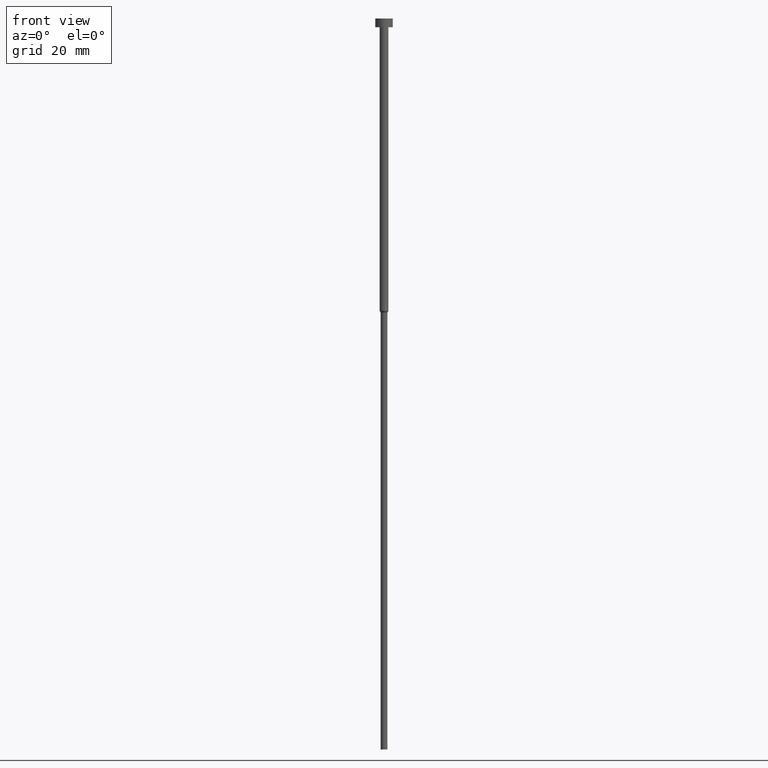
[diagram: clean part render]
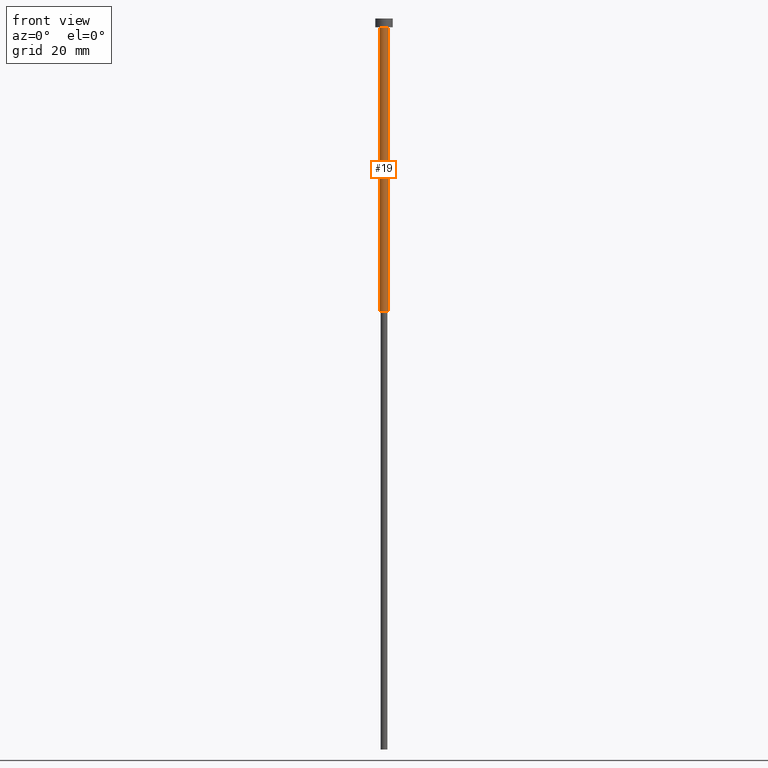
[diagram: same view with one face highlighted and labeled with its STEP entity id]
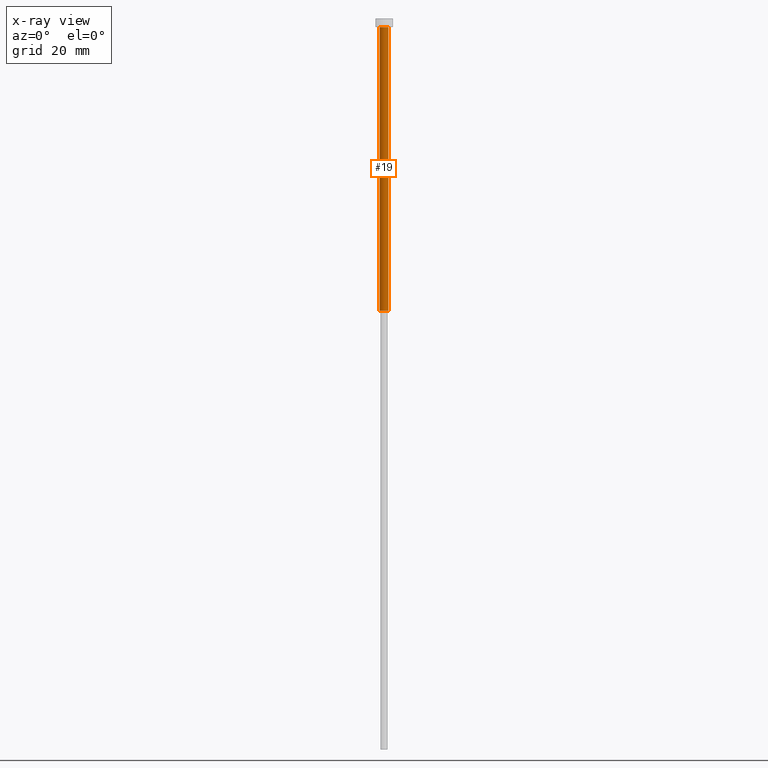
[diagram: x-ray of the same camera — body ghosted, the highlighted face saturated]
A machine part, front view. The second image highlights one B-rep face of the part: STEP entity #19.
The next image is the same camera in x-ray: the body ghosted, the highlighted face saturated — about 0% of this face is hidden behind the body in this view.
In plain terms, the highlighted cylindrical surface (edge-blend (fillet) strip) has radius 1.5 mm, axis along (-0, -0, 1).
Its self-contained STEP definition (entity closure, byte-faithful):
#1 = CARTESIAN_POINT ( 'NONE',  ( 0.000000000000000000, 0.000000000000000000, -3.000000000000000888 ) ) ;
#2 = LINE ( 'NONE', #136, #347 ) ;
#19 = ADVANCED_FACE ( 'NONE', ( #150 ), #182, .T. ) ;
#20 = EDGE_LOOP ( 'NONE', ( #265, #214, #69, #149 ) ) ;
#34 = EDGE_CURVE ( 'NONE', #46, #335, #2, .T. ) ;
#44 = VERTEX_POINT ( 'NONE', #351 ) ;
#46 = VERTEX_POINT ( 'NONE', #246 ) ;
#48 = CARTESIAN_POINT ( 'NONE',  ( 0.000000000000000000, 0.000000000000000000, 0.000000000000000000 ) ) ;
#50 = DIRECTION ( 'NONE',  ( 1.000000000000000000, 0.000000000000000000, 0.000000000000000000 ) ) ;
#65 = EDGE_CURVE ( 'NONE', #102, #335, #189, .T. ) ;
#69 = ORIENTED_EDGE ( 'NONE', *, *, #34, .T. ) ;
#102 = VERTEX_POINT ( 'NONE', #157 ) ;
#118 = AXIS2_PLACEMENT_3D ( 'NONE', #48, #137, #50 ) ;
#120 = CARTESIAN_POINT ( 'NONE',  ( 1.500000000000000000, 0.000000000000000000, -3.000000000000000888 ) ) ;
#136 = CARTESIAN_POINT ( 'NONE',  ( 1.500000000000000000, 0.000000000000000000, 0.000000000000000000 ) ) ;
#137 = DIRECTION ( 'NONE',  ( -0.000000000000000000, -0.000000000000000000, 1.000000000000000000 ) ) ;
#138 = CIRCLE ( 'NONE', #191, 1.500000000000000000 ) ;
#141 = DIRECTION ( 'NONE',  ( -0.000000000000000000, -0.000000000000000000, 1.000000000000000000 ) ) ;
#149 = ORIENTED_EDGE ( 'NONE', *, *, #65, .F. ) ;
#150 = FACE_OUTER_BOUND ( 'NONE', #20, .T. ) ;
#157 = CARTESIAN_POINT ( 'NONE',  ( -1.500000000000000000, 1.836970198721029934E-16, -3.000000000000000888 ) ) ;
#158 = DIRECTION ( 'NONE',  ( 1.000000000000000000, 0.000000000000000000, 0.000000000000000000 ) ) ;
#182 = CYLINDRICAL_SURFACE ( 'NONE', #118, 1.500000000000000000 ) ;
#184 = VECTOR ( 'NONE', #228, 1000.000000000000000 ) ;
#189 = CIRCLE ( 'NONE', #326, 1.500000000000000000 ) ;
#191 = AXIS2_PLACEMENT_3D ( 'NONE', #342, #141, #200 ) ;
#200 = DIRECTION ( 'NONE',  ( 1.000000000000000000, 0.000000000000000000, 0.000000000000000000 ) ) ;
#214 = ORIENTED_EDGE ( 'NONE', *, *, #272, .T. ) ;
#220 = DIRECTION ( 'NONE',  ( -0.000000000000000000, -0.000000000000000000, 1.000000000000000000 ) ) ;
#225 = LINE ( 'NONE', #231, #184 ) ;
#228 = DIRECTION ( 'NONE',  ( -0.000000000000000000, -0.000000000000000000, 1.000000000000000000 ) ) ;
#231 = CARTESIAN_POINT ( 'NONE',  ( -1.500000000000000000, 1.836970198721029934E-16, 0.000000000000000000 ) ) ;
#246 = CARTESIAN_POINT ( 'NONE',  ( 1.500000000000000000, 0.000000000000000000, -100.0000000000000000 ) ) ;
#265 = ORIENTED_EDGE ( 'NONE', *, *, #325, .F. ) ;
#272 = EDGE_CURVE ( 'NONE', #44, #46, #138, .T. ) ;
#299 = DIRECTION ( 'NONE',  ( -0.000000000000000000, -0.000000000000000000, 1.000000000000000000 ) ) ;
#325 = EDGE_CURVE ( 'NONE', #44, #102, #225, .T. ) ;
#326 = AXIS2_PLACEMENT_3D ( 'NONE', #1, #220, #158 ) ;
#335 = VERTEX_POINT ( 'NONE', #120 ) ;
#342 = CARTESIAN_POINT ( 'NONE',  ( 0.000000000000000000, 0.000000000000000000, -100.0000000000000000 ) ) ;
#347 = VECTOR ( 'NONE', #299, 1000.000000000000000 ) ;
#351 = CARTESIAN_POINT ( 'NONE',  ( -1.500000000000000000, 1.836970198721029934E-16, -100.0000000000000000 ) ) ;